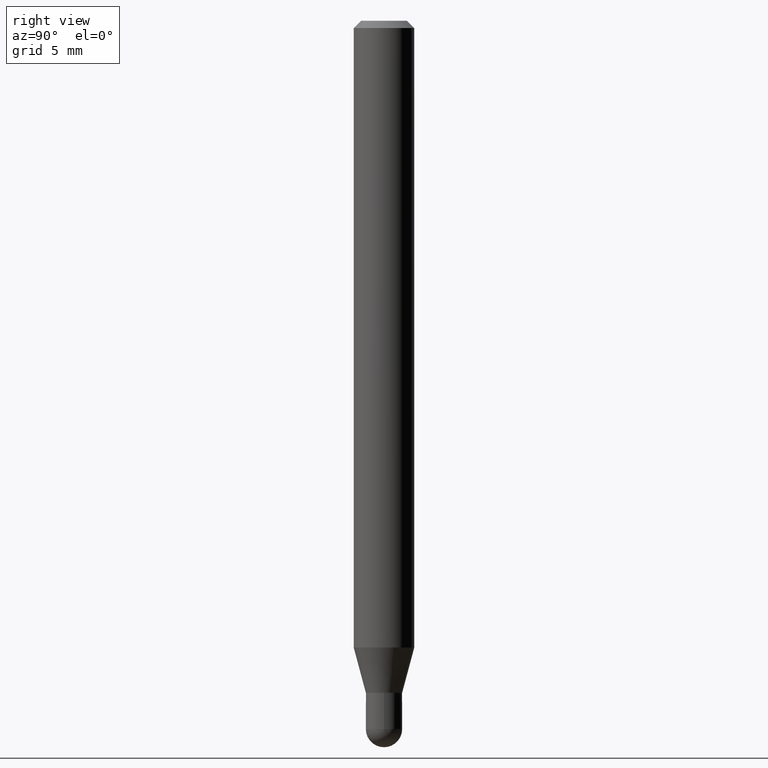
[diagram: clean part render]
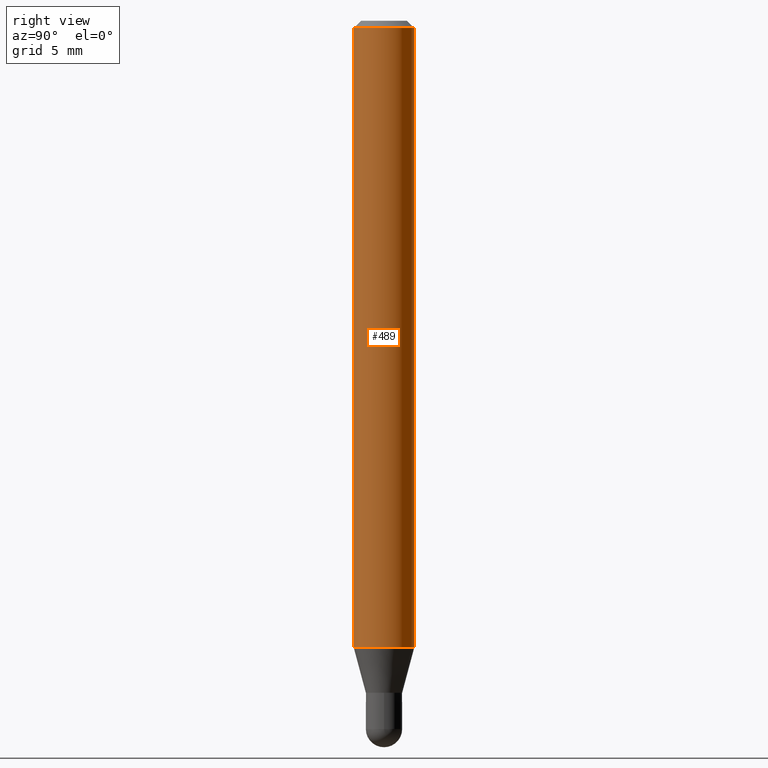
[diagram: same view with one face highlighted and labeled with its STEP entity id]
A machine part, right view. The second image highlights one B-rep face of the part: STEP entity #489.
In plain terms, the highlighted cylindrical surface (edge-blend (fillet) strip) has radius 1.5875 mm, axis along (-0, 0, 1).
Its self-contained STEP definition (entity closure, byte-faithful):
#5 = EDGE_LOOP ( 'NONE', ( #209, #297, #113, #95 ) ) ;
#10 = CARTESIAN_POINT ( 'NONE',  ( 3.668173835554947116E-31, -5.237264073107601830E-17, -0.01500000000000006710 ) ) ;
#13 = LINE ( 'NONE', #284, #219 ) ;
#59 = AXIS2_PLACEMENT_3D ( 'NONE', #10, #271, #81 ) ;
#63 = VERTEX_POINT ( 'NONE', #401 ) ;
#81 = DIRECTION ( 'NONE',  ( -6.982962677686265922E-15, -1.000000000000000000, 3.483106191921935554E-15 ) ) ;
#84 = FACE_OUTER_BOUND ( 'NONE', #5, .T. ) ;
#85 = CIRCLE ( 'NONE', #59, 0.06250000000000000000 ) ;
#95 = ORIENTED_EDGE ( 'NONE', *, *, #176, .F. ) ;
#96 = DIRECTION ( 'NONE',  ( -2.445449223703287346E-29, 3.491509382071719844E-15, 1.000000000000000000 ) ) ;
#113 = ORIENTED_EDGE ( 'NONE', *, *, #402, .F. ) ;
#126 = CARTESIAN_POINT ( 'NONE',  ( -4.364351673553916201E-16, -0.06250000000000000000, 2.182193363794824656E-16 ) ) ;
#176 = EDGE_CURVE ( 'NONE', #191, #63, #446, .T. ) ;
#184 = VERTEX_POINT ( 'NONE', #363 ) ;
#188 = CIRCLE ( 'NONE', #470, 0.06250000000000000000 ) ;
#190 = CYLINDRICAL_SURFACE ( 'NONE', #270, 0.06250000000000000000 ) ;
#191 = VERTEX_POINT ( 'NONE', #253 ) ;
#200 = DIRECTION ( 'NONE',  ( -2.445449223703287346E-29, 3.491509382071719450E-15, 1.000000000000000000 ) ) ;
#202 = EDGE_CURVE ( 'NONE', #381, #184, #13, .T. ) ;
#209 = ORIENTED_EDGE ( 'NONE', *, *, #352, .T. ) ;
#219 = VECTOR ( 'NONE', #407, 39.37007874015748143 ) ;
#253 = CARTESIAN_POINT ( 'NONE',  ( -4.364351673553602629E-16, -0.06250000000000455191, -1.294198729810781989 ) ) ;
#260 = CARTESIAN_POINT ( 'NONE',  ( 3.164897279133557354E-29, -4.518707007399648771E-15, -1.294198729810782211 ) ) ;
#262 = CARTESIAN_POINT ( 'NONE',  ( 4.440892098500938748E-16, 0.06249999999999544809, -1.294198729810782433 ) ) ;
#270 = AXIS2_PLACEMENT_3D ( 'NONE', #317, #200, #309 ) ;
#271 = DIRECTION ( 'NONE',  ( -2.445449223703287346E-29, 3.491509382071719450E-15, 1.000000000000000000 ) ) ;
#284 = CARTESIAN_POINT ( 'NONE',  ( 4.440892098500625669E-16, 0.06250000000000000000, -2.182193363794824656E-16 ) ) ;
#297 = ORIENTED_EDGE ( 'NONE', *, *, #202, .T. ) ;
#309 = DIRECTION ( 'NONE',  ( -6.982962677686265922E-15, -1.000000000000000000, 3.491509382071719450E-15 ) ) ;
#317 = CARTESIAN_POINT ( 'NONE',  ( 0.000000000000000000, 0.000000000000000000, 0.000000000000000000 ) ) ;
#326 = VECTOR ( 'NONE', #96, 39.37007874015748143 ) ;
#352 = EDGE_CURVE ( 'NONE', #191, #381, #188, .T. ) ;
#363 = CARTESIAN_POINT ( 'NONE',  ( 4.440892098500944664E-16, 0.06249999999999995143, -0.01500000000000028394 ) ) ;
#378 = DIRECTION ( 'NONE',  ( -6.982962677686265922E-15, -1.000000000000000000, 4.370956789862821150E-15 ) ) ;
#381 = VERTEX_POINT ( 'NONE', #262 ) ;
#401 = CARTESIAN_POINT ( 'NONE',  ( -4.364351673553912750E-16, -0.06250000000000005551, -0.01499999999999984852 ) ) ;
#402 = EDGE_CURVE ( 'NONE', #63, #184, #85, .T. ) ;
#407 = DIRECTION ( 'NONE',  ( -2.445449223703287346E-29, 3.491509382071719844E-15, 1.000000000000000000 ) ) ;
#446 = LINE ( 'NONE', #126, #326 ) ;
#452 = DIRECTION ( 'NONE',  ( -2.445449223703287346E-29, 3.491509382071719450E-15, 1.000000000000000000 ) ) ;
#470 = AXIS2_PLACEMENT_3D ( 'NONE', #260, #452, #378 ) ;
#489 = ADVANCED_FACE ( 'NONE', ( #84 ), #190, .T. ) ;